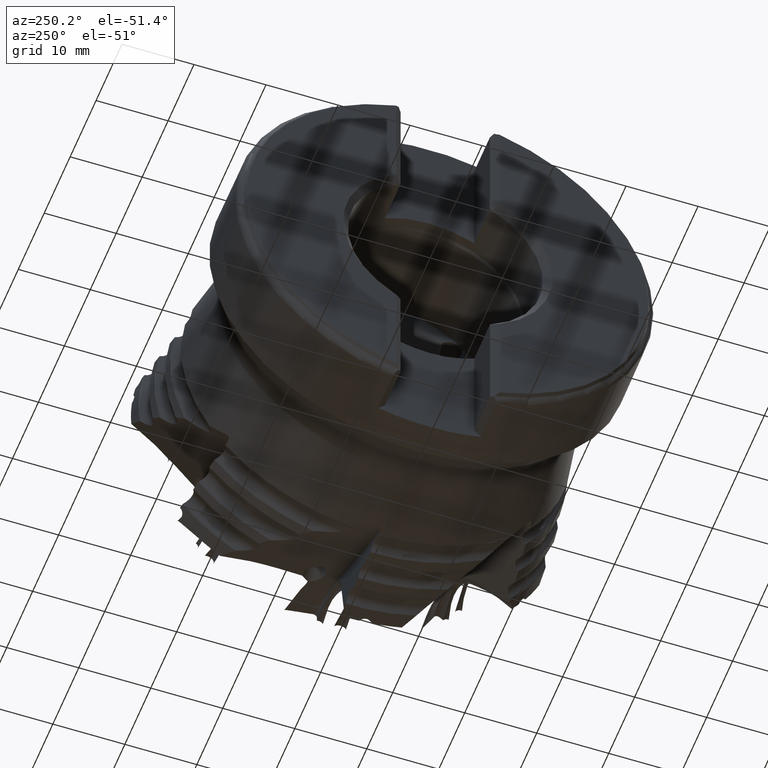
[diagram: clean part render]
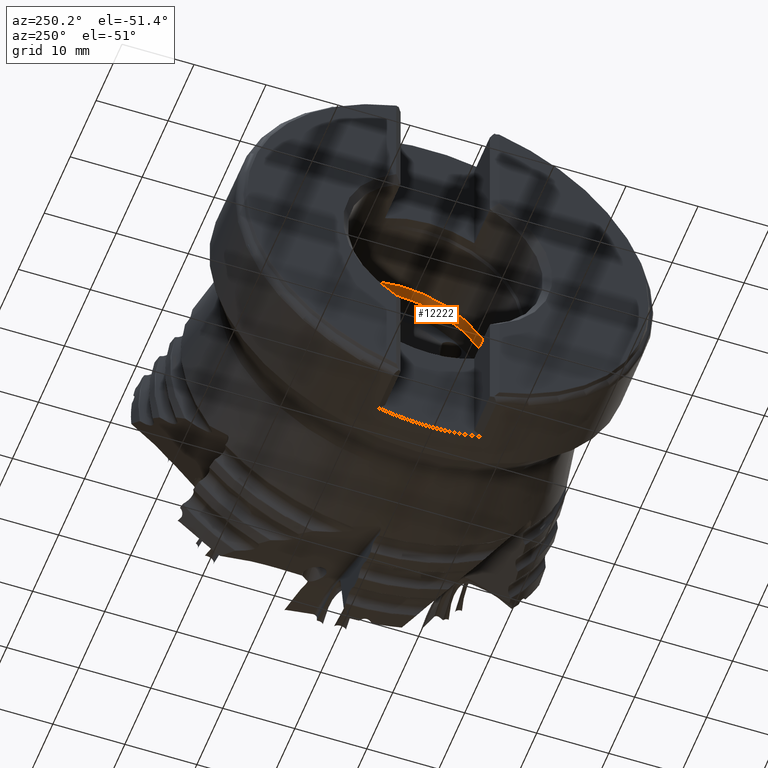
[diagram: same view with one face highlighted and labeled with its STEP entity id]
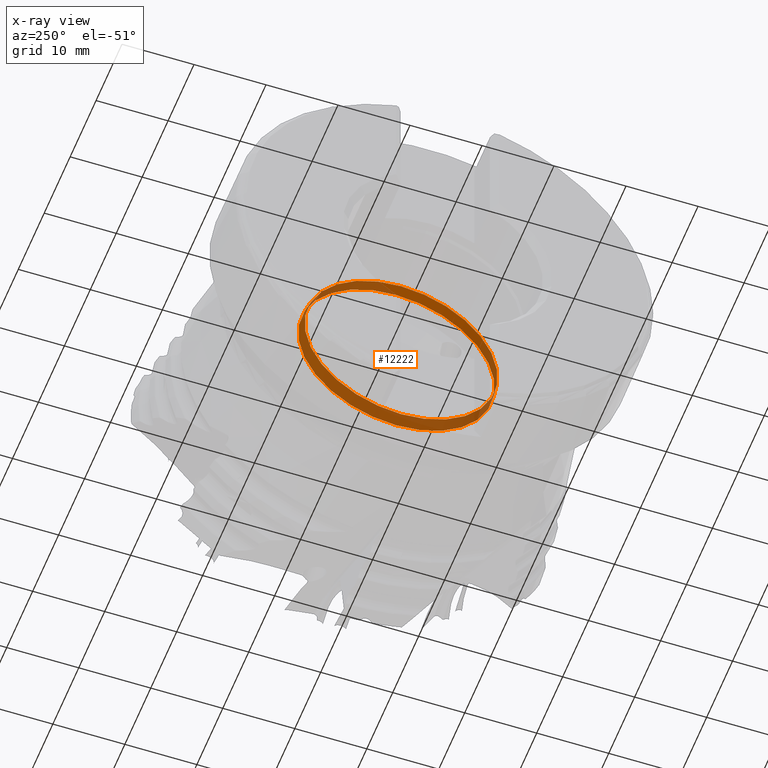
[diagram: x-ray of the same camera — body ghosted, the highlighted face saturated]
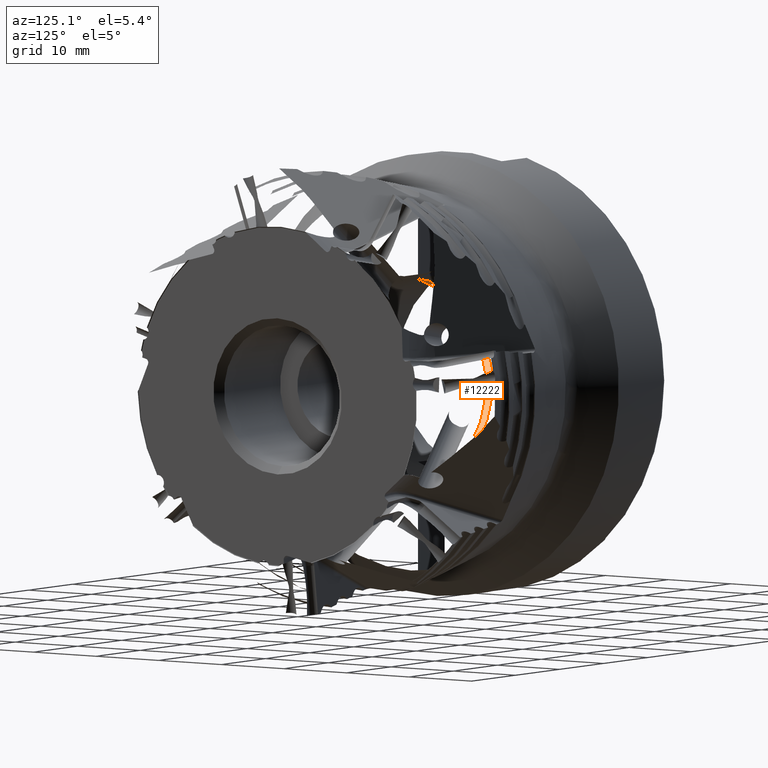
[diagram: same view with one face highlighted and labeled with its STEP entity id]
A machine part, auxiliary view. The second image highlights one B-rep face of the part: STEP entity #12222.
The next image is the same camera in x-ray: the body ghosted, the highlighted face saturated — about 77% of this face is hidden behind the body in this view.
A second angle (auxiliary view) of the same face is appended — the face is thin or edge-on in the first view.
In plain terms, the highlighted conical surface has half-angle 8 deg.
Its self-contained STEP definition (entity closure, byte-faithful):
#45 = ORIENTED_EDGE ( 'NONE', *, *, #4939, .T. ) ;
#416 = CONICAL_SURFACE ( 'NONE', #6406, 13.64999999999999700, 0.1396263401595468400 ) ;
#665 = DIRECTION ( 'NONE',  ( 1.000000000000000000, -0.0000000000000000000, -0.0000000000000000000 ) ) ;
#753 = FACE_OUTER_BOUND ( 'NONE', #2486, .T. ) ;
#1432 = DIRECTION ( 'NONE',  ( 1.000000000000000000, -0.0000000000000000000, -0.0000000000000000000 ) ) ;
#2486 = EDGE_LOOP ( 'NONE', ( #45 ) ) ;
#2955 = AXIS2_PLACEMENT_3D ( 'NONE', #10737, #4394, #11799 ) ;
#3159 = CARTESIAN_POINT ( 'NONE',  ( -29.22115756940395000, 0.0000000000000000000, -13.64999999999999700 ) ) ;
#3810 = DIRECTION ( 'NONE',  ( 0.0000000000000000000, 0.0000000000000000000, -1.000000000000000000 ) ) ;
#4394 = DIRECTION ( 'NONE',  ( 1.000000000000000000, -0.0000000000000000000, -0.0000000000000000000 ) ) ;
#4606 = EDGE_LOOP ( 'NONE', ( #11834 ) ) ;
#4864 = CIRCLE ( 'NONE', #6845, 13.64999999999999700 ) ;
#4939 = EDGE_CURVE ( 'NONE', #10836, #10836, #4864, .T. ) ;
#6253 = EDGE_CURVE ( 'NONE', #8021, #8021, #10647, .T. ) ;
#6406 = AXIS2_PLACEMENT_3D ( 'NONE', #11236, #665, #3810 ) ;
#6845 = AXIS2_PLACEMENT_3D ( 'NONE', #7779, #1432, #8874 ) ;
#7779 = CARTESIAN_POINT ( 'NONE',  ( -29.22115756940395000, 0.0000000000000000000, 0.0000000000000000000 ) ) ;
#8021 = VERTEX_POINT ( 'NONE', #10574 ) ;
#8874 = DIRECTION ( 'NONE',  ( 0.0000000000000000000, 0.0000000000000000000, -1.000000000000000000 ) ) ;
#10574 = CARTESIAN_POINT ( 'NONE',  ( -30.99999999999999600, 0.0000000000000000000, -13.39999999999999700 ) ) ;
#10647 = CIRCLE ( 'NONE', #2955, 13.39999999999999700 ) ;
#10737 = CARTESIAN_POINT ( 'NONE',  ( -30.99999999999999600, 0.0000000000000000000, 0.0000000000000000000 ) ) ;
#10836 = VERTEX_POINT ( 'NONE', #3159 ) ;
#11236 = CARTESIAN_POINT ( 'NONE',  ( -29.22115756940395000, 0.0000000000000000000, 0.0000000000000000000 ) ) ;
#11799 = DIRECTION ( 'NONE',  ( 0.0000000000000000000, 0.0000000000000000000, -1.000000000000000000 ) ) ;
#11834 = ORIENTED_EDGE ( 'NONE', *, *, #6253, .F. ) ;
#12222 = ADVANCED_FACE ( 'NONE', ( #12349, #753 ), #416, .F. ) ;
#12349 = FACE_BOUND ( 'NONE', #4606, .T. ) ;